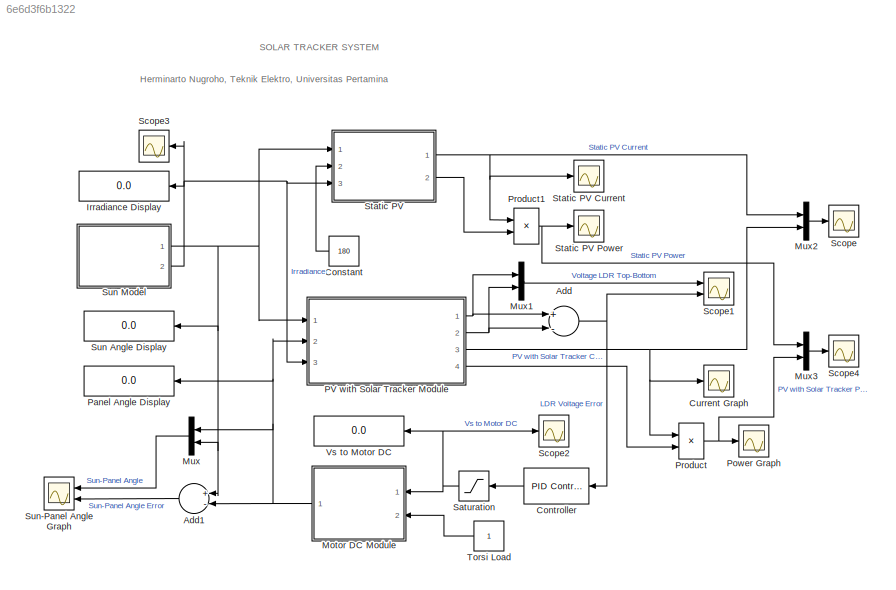
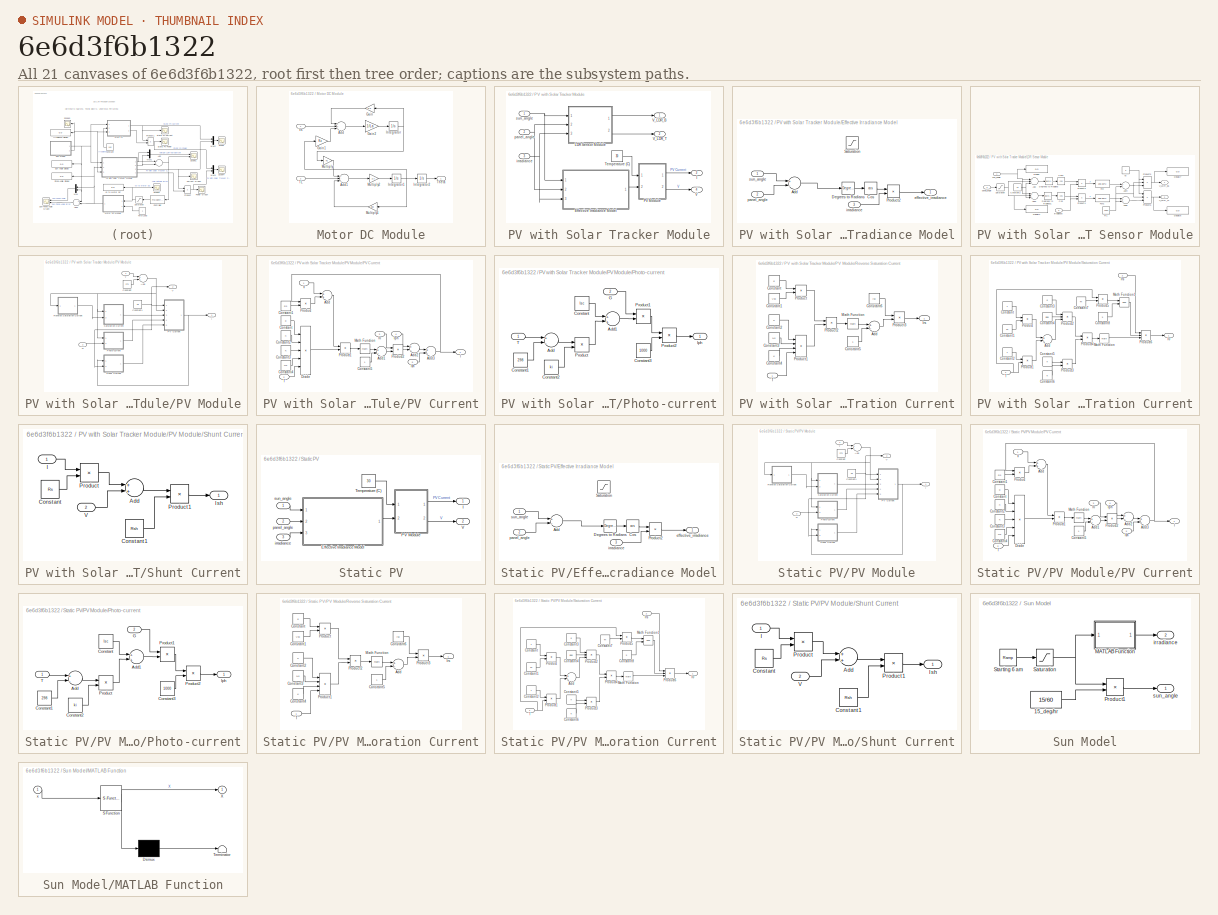
[diagram: thumbnail index - all 21 canvases of the model, root first then tree order]
MODEL slx_6e6d3f6b1322
KIND model
CONFIG AbsTol = auto
CONFIG EnableMultiTasking = off
CONFIG FixedStep = auto
CONFIG MaxStep = auto
CONFIG MinStep = auto
CONFIG RelTol = 1e-3
CONFIG SampleTimeConstraint = Unconstrained
CONFIG Solver = VariableStepAuto
CONFIG SolverName = VariableStepAuto
CONFIG StartTime = 0.0
CONFIG StopTime = 80
BLOCK [Sum] Add
  InputSameDT = off
  Inputs = +-
  OutDataTypeStr = Inherit: Inherit via internal rule
  Ports = [2, 1]
  SaturateOnIntegerOverflow = off
BLOCK [Sum] Add1
  InputSameDT = off
  Inputs = +-
  OutDataTypeStr = Inherit: Inherit via internal rule
  Ports = [2, 1]
  SaturateOnIntegerOverflow = off
BLOCK [Constant] Constant
  Value = 180
BLOCK [Reference] Controller  REF=simulink/Continuous/PID Controller
  Ports = [1, 1]
  SourceBlock = simulink/Continuous/PID Controller
  SourceProductBaseCode = SL
  SourceProductName = Simulink
  SourceType = PID 1dof
BLOCK [Scope] Current Graph
  Floating = off
  NumInputPorts = 1
  Ports = [1]
  ScopeSpecificationString = Simulink.scopes.TimeScopeBlockCfg('CurrentConfiguration', extmgr.ConfigurationSet(extmgr.Configuration('Core','General UI',true),extmgr.Configuration('Core','Source UI',true),extmgr.Configuration('Sources','WiredSimulink',true,'DataLoggingVariableName','ScopeData4'),extmgr.Configuration('Visuals','Time Domain',true,'SerializedDisplays',{struct('MinYLimReal','-1.68574','MaxYLimReal','7.54541','YLab...<+1421ch>
BLOCK [Display] Irradiance Display
  Decimation = 1
  Ports = [1]
BLOCK [SubSystem] Motor DC Module
  InitFcn = Ra=0.5,\nLa=1.5e-3,\nKc=0.05,\nJ=2.5e-4,\nBM=1e-4,
  Ports = [2, 1]
  RequestExecContextInheritance = off
BLOCK [Sum] Motor DC Module/Add
  InputSameDT = off
  Inputs = -+-
  OutDataTypeStr = Inherit: Inherit via internal rule
  Ports = [3, 1]
  SaturateOnIntegerOverflow = off
BLOCK [Sum] Motor DC Module/Add1
  InputSameDT = off
  Inputs = +--
  OutDataTypeStr = Inherit: Inherit via internal rule
  Ports = [3, 1]
  SaturateOnIntegerOverflow = off
BLOCK [Gain] Motor DC Module/Gain
  Gain = Ra
  OutDataTypeStr = Inherit: Inherit via internal rule
  ParamDataTypeStr = Inherit: Inherit via internal rule
  SaturateOnIntegerOverflow = off
BLOCK [Gain] Motor DC Module/Gain1
  Gain = Kc
  OutDataTypeStr = Inherit: Inherit via internal rule
  ParamDataTypeStr = Inherit: Inherit via internal rule
  SaturateOnIntegerOverflow = off
BLOCK [Gain] Motor DC Module/Gain2
  Gain = 1/La
  OutDataTypeStr = Inherit: Inherit via internal rule
  ParamDataTypeStr = Inherit: Inherit via internal rule
  SaturateOnIntegerOverflow = off
BLOCK [Integrator] Motor DC Module/Integrator
  Ports = [1, 1]
BLOCK [Integrator] Motor DC Module/Integrator1
  Ports = [1, 1]
BLOCK [Integrator] Motor DC Module/Integrator2
  Ports = [1, 1]
BLOCK [Gain] Motor DC Module/Multiply
  Gain = Kc
  OutDataTypeStr = Inherit: Inherit via internal rule
  ParamDataTypeStr = Inherit: Inherit via internal rule
  SaturateOnIntegerOverflow = off
BLOCK [Gain] Motor DC Module/Multiply1
  Gain = BM
  OutDataTypeStr = Inherit: Inherit via internal rule
  ParamDataTypeStr = Inherit: Inherit via internal rule
  SaturateOnIntegerOverflow = off
BLOCK [Gain] Motor DC Module/Multiply2
  Gain = 1/J
  OutDataTypeStr = Inherit: Inherit via internal rule
  ParamDataTypeStr = Inherit: Inherit via internal rule
  SaturateOnIntegerOverflow = off
BLOCK [Inport] Motor DC Module/TL
  IconDisplay = Port number
  Port = 2
BLOCK [Outport] Motor DC Module/Theta
  IconDisplay = Port number
BLOCK [Inport] Motor DC Module/Vs
  IconDisplay = Port number
BLOCK [Mux] Mux
  DisplayOption = bar
  Inputs = 2
  Ports = [2, 1]
BLOCK [Mux] Mux1
  DisplayOption = bar
  Inputs = 2
  Ports = [2, 1]
BLOCK [Mux] Mux2
  DisplayOption = bar
  Inputs = 2
  Ports = [2, 1]
BLOCK [Mux] Mux3
  DisplayOption = bar
  Inputs = 2
  Ports = [2, 1]
BLOCK [SubSystem] PV with Solar Tracker Module
  Ports = [3, 4]
  RequestExecContextInheritance = off
BLOCK [SubSystem] PV with Solar Tracker Module/Effective Irradiance Model
  Ports = [3, 1]
  RequestExecContextInheritance = off
BLOCK [Sum] PV with Solar Tracker Module/Effective Irradiance Model/Add
  InputSameDT = off
  Inputs = +-
  OutDataTypeStr = Inherit: Inherit via internal rule
  Ports = [2, 1]
  SaturateOnIntegerOverflow = off
BLOCK [Trigonometry] PV with Solar Tracker Module/Effective Irradiance Model/Cos
  Operator = cos
  Ports = [1, 1]
BLOCK [Reference] PV with Solar Tracker Module/Effective Irradiance Model/Degrees to Radians  REF=simulink_extras/Transformations/Degrees to
Radians
  Ports = [1, 1]
  SourceBlock = simulink_extras/Transformations/Degrees to\nRadians
  SourceProductBaseCode = SL
  SourceProductName = Simulink
  SourceType = DegreesToRadians
BLOCK [Product] PV with Solar Tracker Module/Effective Irradiance Model/Product2
  InputSameDT = off
  Inputs = **
  OutDataTypeStr = Inherit: Inherit via internal rule
  Ports = [2, 1]
  RndMeth = Floor
  SaturateOnIntegerOverflow = off
BLOCK [Saturate] PV with Solar Tracker Module/Effective Irradiance Model/Saturation
  InputPortMap = u0
  LowerLimit = -90
  Ports = [1, 1]
  UpperLimit = 90
BLOCK [Outport] PV with Solar Tracker Module/Effective Irradiance Model/effective_irradiance
  IconDisplay = Port number
BLOCK [Inport] PV with Solar Tracker Module/Effective Irradiance Model/irradiance
  IconDisplay = Port number
  Port = 3
BLOCK [Inport] PV with Solar Tracker Module/Effective Irradiance Model/panel_angle
  IconDisplay = Port number
  Port = 2
BLOCK [Inport] PV with Solar Tracker Module/Effective Irradiance Model/sun_angle
  IconDisplay = Port number
BLOCK [Outport] PV with Solar Tracker Module/I
  IconDisplay = Port number
  Port = 3
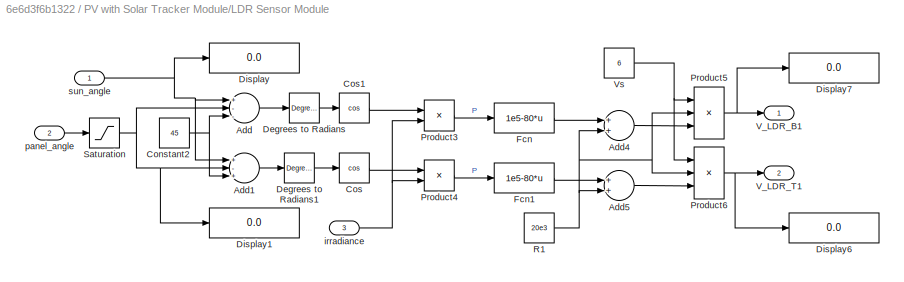
BLOCK [SubSystem] PV with Solar Tracker Module/LDR Sensor Module
  Ports = [3, 2]
  RequestExecContextInheritance = off
BLOCK [Sum] PV with Solar Tracker Module/LDR Sensor Module/Add
  InputSameDT = off
  Inputs = +--
  OutDataTypeStr = Inherit: Inherit via internal rule
  Ports = [3, 1]
  SaturateOnIntegerOverflow = off
BLOCK [Sum] PV with Solar Tracker Module/LDR Sensor Module/Add1
  InputSameDT = off
  Inputs = +-+
  OutDataTypeStr = Inherit: Inherit via internal rule
  Ports = [3, 1]
  SaturateOnIntegerOverflow = off
BLOCK [Sum] PV with Solar Tracker Module/LDR Sensor Module/Add4
  InputSameDT = off
  OutDataTypeStr = Inherit: Inherit via internal rule
  Ports = [2, 1]
  SaturateOnIntegerOverflow = off
BLOCK [Sum] PV with Solar Tracker Module/LDR Sensor Module/Add5
  InputSameDT = off
  OutDataTypeStr = Inherit: Inherit via internal rule
  Ports = [2, 1]
  SaturateOnIntegerOverflow = off
BLOCK [Constant] PV with Solar Tracker Module/LDR Sensor Module/Constant2
  Value = 45
BLOCK [Trigonometry] PV with Solar Tracker Module/LDR Sensor Module/Cos
  Operator = cos
  Ports = [1, 1]
BLOCK [Trigonometry] PV with Solar Tracker Module/LDR Sensor Module/Cos1
  Operator = cos
  Ports = [1, 1]
BLOCK [Reference] PV with Solar Tracker Module/LDR Sensor Module/Degrees to Radians  REF=simulink_extras/Transformations/Degrees to
Radians
  Ports = [1, 1]
  SourceBlock = simulink_extras/Transformations/Degrees to\nRadians
  SourceProductBaseCode = SL
  SourceProductName = Simulink
  SourceType = DegreesToRadians
BLOCK [Reference] PV with Solar Tracker Module/LDR Sensor Module/Degrees to Radians1  REF=simulink_extras/Transformations/Degrees to
Radians
  Ports = [1, 1]
  SourceBlock = simulink_extras/Transformations/Degrees to\nRadians
  SourceProductBaseCode = SL
  SourceProductName = Simulink
  SourceType = DegreesToRadians
BLOCK [Display] PV with Solar Tracker Module/LDR Sensor Module/Display
  Decimation = 1
  Ports = [1]
BLOCK [Display] PV with Solar Tracker Module/LDR Sensor Module/Display1
  Decimation = 1
  Ports = [1]
BLOCK [Display] PV with Solar Tracker Module/LDR Sensor Module/Display6
  Decimation = 1
  Ports = [1]
BLOCK [Display] PV with Solar Tracker Module/LDR Sensor Module/Display7
  Decimation = 1
  Ports = [1]
BLOCK [Fcn] PV with Solar Tracker Module/LDR Sensor Module/Fcn
  Expr = 1e5-80*u
BLOCK [Fcn] PV with Solar Tracker Module/LDR Sensor Module/Fcn1
  Expr = 1e5-80*u
BLOCK [Product] PV with Solar Tracker Module/LDR Sensor Module/Product3
  InputSameDT = off
  OutDataTypeStr = Inherit: Inherit via internal rule
  Ports = [2, 1]
  RndMeth = Floor
  SaturateOnIntegerOverflow = off
BLOCK [Product] PV with Solar Tracker Module/LDR Sensor Module/Product4
  InputSameDT = off
  OutDataTypeStr = Inherit: Inherit via internal rule
  Ports = [2, 1]
  RndMeth = Floor
  SaturateOnIntegerOverflow = off
BLOCK [Product] PV with Solar Tracker Module/LDR Sensor Module/Product5
  InputSameDT = off
  Inputs = **/
  OutDataTypeStr = Inherit: Inherit via internal rule
  Ports = [3, 1]
  RndMeth = Floor
  SaturateOnIntegerOverflow = off
BLOCK [Product] PV with Solar Tracker Module/LDR Sensor Module/Product6
  InputSameDT = off
  Inputs = **/
  OutDataTypeStr = Inherit: Inherit via internal rule
  Ports = [3, 1]
  RndMeth = Floor
  SaturateOnIntegerOverflow = off
BLOCK [Constant] PV with Solar Tracker Module/LDR Sensor Module/R1
  Value = 20e3
BLOCK [Saturate] PV with Solar Tracker Module/LDR Sensor Module/Saturation
  InputPortMap = u0
  LowerLimit = 0
  Ports = [1, 1]
  UpperLimit = 360
BLOCK [Outport] PV with Solar Tracker Module/LDR Sensor Module/V_LDR_B1
  IconDisplay = Port number
BLOCK [Outport] PV with Solar Tracker Module/LDR Sensor Module/V_LDR_T1
  IconDisplay = Port number
  Port = 2
BLOCK [Constant] PV with Solar Tracker Module/LDR Sensor Module/Vs
  Value = 6
BLOCK [Inport] PV with Solar Tracker Module/LDR Sensor Module/irradiance
  IconDisplay = Port number
  Port = 3
BLOCK [Inport] PV with Solar Tracker Module/LDR Sensor Module/panel_angle
  IconDisplay = Port number
  Port = 2
BLOCK [Inport] PV with Solar Tracker Module/LDR Sensor Module/sun_angle
  IconDisplay = Port number
BLOCK [SubSystem] PV with Solar Tracker Module/PV Module
  InitFcn = ki=0.0032,\nq=1.6e-19,\nK=1.38e-23,\nn=1.3,\nEg0=1.1,\nRs=0.221,\nRsh=414.405,\nTn=298,\nVoc=32.9,\nIsc=8.21,\nNs=54,
  Ports = [2, 2]
  RequestExecContextInheritance = off
BLOCK [Sum] PV with Solar Tracker Module/PV Module/Add
  InputSameDT = off
  OutDataTypeStr = Inherit: Inherit via internal rule
  Ports = [2, 1]
  SaturateOnIntegerOverflow = off
BLOCK [Constant] PV with Solar Tracker Module/PV Module/Constant
  Value = 273
BLOCK [Constant] PV with Solar Tracker Module/PV Module/Constant1
  Value = 26
BLOCK [Inport] PV with Solar Tracker Module/PV Module/G
  IconDisplay = Port number
  Port = 2
BLOCK [Outport] PV with Solar Tracker Module/PV Module/I
  IconDisplay = Port number
BLOCK [SubSystem] PV with Solar Tracker Module/PV Module/PV Current
  Ports = [5, 1]
  RequestExecContextInheritance = off
BLOCK [Sum] PV with Solar Tracker Module/PV Module/PV Current/Add
  InputSameDT = off
  OutDataTypeStr = Inherit: Inherit via internal rule
  Ports = [2, 1]
  SaturateOnIntegerOverflow = off
BLOCK [Sum] PV with Solar Tracker Module/PV Module/PV Current/Add1
  InputSameDT = off
  Inputs = +-
  OutDataTypeStr = Inherit: Inherit via internal rule
  Ports = [2, 1]
  SaturateOnIntegerOverflow = off
BLOCK [Sum] PV with Solar Tracker Module/PV Module/PV Current/Add2
  InputSameDT = off
  Inputs = +-
  OutDataTypeStr = Inherit: Inherit via internal rule
  Ports = [2, 1]
  SaturateOnIntegerOverflow = off
BLOCK [Sum] PV with Solar Tracker Module/PV Module/PV Current/Add3
  InputSameDT = off
  Inputs = +-
  OutDataTypeStr = Inherit: Inherit via internal rule
  Ports = [2, 1]
  SaturateOnIntegerOverflow = off
BLOCK [Constant] PV with Solar Tracker Module/PV Module/PV Current/Constant
  Value = q
BLOCK [Constant] PV with Solar Tracker Module/PV Module/PV Current/Constant1
  Value = Rs
BLOCK [Constant] PV with Solar Tracker Module/PV Module/PV Current/Constant2
  Value = n
BLOCK [Constant] PV with Solar Tracker Module/PV Module/PV Current/Constant3
  Value = K
BLOCK [Constant] PV with Solar Tracker Module/PV Module/PV Current/Constant4
  Value = Ns
BLOCK [Constant] PV with Solar Tracker Module/PV Module/PV Current/Constant5
BLOCK [Product] PV with Solar Tracker Module/PV Module/PV Current/Divide
  InputSameDT = off
  Inputs = *////
  OutDataTypeStr = Inherit: Inherit via internal rule
  Ports = [5, 1]
  RndMeth = Floor
  SaturateOnIntegerOverflow = off
BLOCK [Outport] PV with Solar Tracker Module/PV Module/PV Current/I
  IconDisplay = Port number
BLOCK [Inport] PV with Solar Tracker Module/PV Module/PV Current/I0
  IconDisplay = Port number
  Port = 3
BLOCK [Inport] PV with Solar Tracker Module/PV Module/PV Current/Iph
  IconDisplay = Port number
  Port = 4
BLOCK [Inport] PV with Solar Tracker Module/PV Module/PV Current/Ish
  IconDisplay = Port number
  Port = 5
BLOCK [Math] PV with Solar Tracker Module/PV Module/PV Current/Math Function
  Ports = [1, 1]
BLOCK [Product] PV with Solar Tracker Module/PV Module/PV Current/Product
  InputSameDT = off
  OutDataTypeStr = Inherit: Inherit via internal rule
  Ports = [2, 1]
  RndMeth = Floor
  SaturateOnIntegerOverflow = off
BLOCK [Product] PV with Solar Tracker Module/PV Module/PV Current/Product1
  InputSameDT = off
  OutDataTypeStr = Inherit: Inherit via internal rule
  Ports = [2, 1]
  RndMeth = Floor
  SaturateOnIntegerOverflow = off
BLOCK [Product] PV with Solar Tracker Module/PV Module/PV Current/Product2
  InputSameDT = off
  OutDataTypeStr = Inherit: Inherit via internal rule
  Ports = [2, 1]
  RndMeth = Floor
  SaturateOnIntegerOverflow = off
BLOCK [Inport] PV with Solar Tracker Module/PV Module/PV Current/T
  IconDisplay = Port number
  Port = 2
BLOCK [Inport] PV with Solar Tracker Module/PV Module/PV Current/V
  IconDisplay = Port number
BLOCK [SubSystem] PV with Solar Tracker Module/PV Module/Photo-current
  Ports = [2, 1]
  RequestExecContextInheritance = off
BLOCK [Sum] PV with Solar Tracker Module/PV Module/Photo-current/Add
  InputSameDT = off
  Inputs = +-
  OutDataTypeStr = Inherit: Inherit via internal rule
  Ports = [2, 1]
  SaturateOnIntegerOverflow = off
BLOCK [Sum] PV with Solar Tracker Module/PV Module/Photo-current/Add1
  InputSameDT = off
  OutDataTypeStr = Inherit: Inherit via internal rule
  Ports = [2, 1]
  SaturateOnIntegerOverflow = off
BLOCK [Constant] PV with Solar Tracker Module/PV Module/Photo-current/Constant
  Value = Isc
BLOCK [Constant] PV with Solar Tracker Module/PV Module/Photo-current/Constant1
  Value = 298
BLOCK [Constant] PV with Solar Tracker Module/PV Module/Photo-current/Constant2
  Value = ki
BLOCK [Constant] PV with Solar Tracker Module/PV Module/Photo-current/Constant3
  Value = 1000
BLOCK [Inport] PV with Solar Tracker Module/PV Module/Photo-current/G
  IconDisplay = Port number
  Port = 2
BLOCK [Outport] PV with Solar Tracker Module/PV Module/Photo-current/Iph
  IconDisplay = Port number
BLOCK [Product] PV with Solar Tracker Module/PV Module/Photo-current/Product
  InputSameDT = off
  OutDataTypeStr = Inherit: Inherit via internal rule
  Ports = [2, 1]
  RndMeth = Floor
  SaturateOnIntegerOverflow = off
BLOCK [Product] PV with Solar Tracker Module/PV Module/Photo-current/Product1
  InputSameDT = off
  OutDataTypeStr = Inherit: Inherit via internal rule
  Ports = [2, 1]
  RndMeth = Floor
  SaturateOnIntegerOverflow = off
BLOCK [Product] PV with Solar Tracker Module/PV Module/Photo-current/Product2
  InputSameDT = off
  Inputs = */
  OutDataTypeStr = Inherit: Inherit via internal rule
  Ports = [2, 1]
  RndMeth = Floor
  SaturateOnIntegerOverflow = off
BLOCK [Inport] PV with Solar Tracker Module/PV Module/Photo-current/T
  IconDisplay = Port number
BLOCK [SubSystem] PV with Solar Tracker Module/PV Module/Reverse Saturation Current
  Ports = [1, 1]
  RequestExecContextInheritance = off
BLOCK [Sum] PV with Solar Tracker Module/PV Module/Reverse Saturation Current/Add
  InputSameDT = off
  Inputs = +-
  OutDataTypeStr = Inherit: Inherit via internal rule
  Ports = [2, 1]
  SaturateOnIntegerOverflow = off
BLOCK [Constant] PV with Solar Tracker Module/PV Module/Reverse Saturation Current/Constant
  Value = q
BLOCK [Constant] PV with Solar Tracker Module/PV Module/Reverse Saturation Current/Constant1
  Value = Voc
BLOCK [Constant] PV with Solar Tracker Module/PV Module/Reverse Saturation Current/Constant2
  Value = n
BLOCK [Constant] PV with Solar Tracker Module/PV Module/Reverse Saturation Current/Constant3
  Value = Ns
BLOCK [Constant] PV with Solar Tracker Module/PV Module/Reverse Saturation Current/Constant4
  Value = K
BLOCK [Constant] PV with Solar Tracker Module/PV Module/Reverse Saturation Current/Constant5
BLOCK [Constant] PV with Solar Tracker Module/PV Module/Reverse Saturation Current/Constant6
  Value = Isc
BLOCK [Outport] PV with Solar Tracker Module/PV Module/Reverse Saturation Current/Irs
  IconDisplay = Port number
BLOCK [Math] PV with Solar Tracker Module/PV Module/Reverse Saturation Current/Math Function
  Ports = [1, 1]
BLOCK [Product] PV with Solar Tracker Module/PV Module/Reverse Saturation Current/Product
  InputSameDT = off
  OutDataTypeStr = Inherit: Inherit via internal rule
  Ports = [2, 1]
  RndMeth = Floor
  SaturateOnIntegerOverflow = off
BLOCK [Product] PV with Solar Tracker Module/PV Module/Reverse Saturation Current/Product1
  InputSameDT = off
  Inputs = ****
  OutDataTypeStr = Inherit: Inherit via internal rule
  Ports = [4, 1]
  RndMeth = Floor
  SaturateOnIntegerOverflow = off
BLOCK [Product] PV with Solar Tracker Module/PV Module/Reverse Saturation Current/Product2
  InputSameDT = off
  Inputs = */
  OutDataTypeStr = Inherit: Inherit via internal rule
  Ports = [2, 1]
  RndMeth = Floor
  SaturateOnIntegerOverflow = off
BLOCK [Product] PV with Solar Tracker Module/PV Module/Reverse Saturation Current/Product3
  InputSameDT = off
  Inputs = */
  OutDataTypeStr = Inherit: Inherit via internal rule
  Ports = [2, 1]
  RndMeth = Floor
  SaturateOnIntegerOverflow = off
BLOCK [Inport] PV with Solar Tracker Module/PV Module/Reverse Saturation Current/T
  IconDisplay = Port number
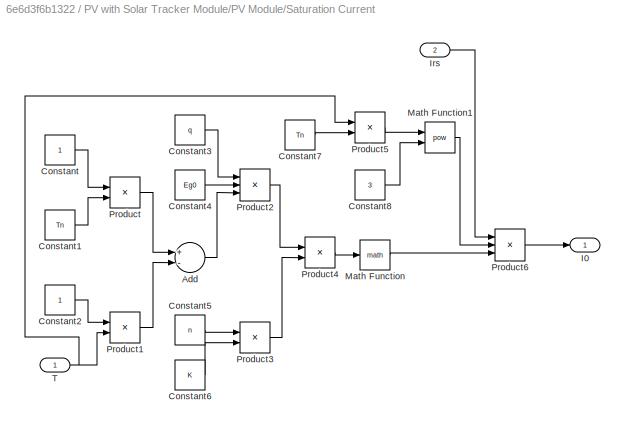
BLOCK [SubSystem] PV with Solar Tracker Module/PV Module/Saturation Current
  Ports = [2, 1]
  RequestExecContextInheritance = off
BLOCK [Sum] PV with Solar Tracker Module/PV Module/Saturation Current/Add
  InputSameDT = off
  Inputs = +-
  OutDataTypeStr = Inherit: Inherit via internal rule
  Ports = [2, 1]
  SaturateOnIntegerOverflow = off
BLOCK [Constant] PV with Solar Tracker Module/PV Module/Saturation Current/Constant
BLOCK [Constant] PV with Solar Tracker Module/PV Module/Saturation Current/Constant1
  Value = Tn
BLOCK [Constant] PV with Solar Tracker Module/PV Module/Saturation Current/Constant2
BLOCK [Constant] PV with Solar Tracker Module/PV Module/Saturation Current/Constant3
  Value = q
BLOCK [Constant] PV with Solar Tracker Module/PV Module/Saturation Current/Constant4
  Value = Eg0
BLOCK [Constant] PV with Solar Tracker Module/PV Module/Saturation Current/Constant5
  Value = n
BLOCK [Constant] PV with Solar Tracker Module/PV Module/Saturation Current/Constant6
  Value = K
BLOCK [Constant] PV with Solar Tracker Module/PV Module/Saturation Current/Constant7
  Value = Tn
BLOCK [Constant] PV with Solar Tracker Module/PV Module/Saturation Current/Constant8
  Value = 3
BLOCK [Outport] PV with Solar Tracker Module/PV Module/Saturation Current/I0
  IconDisplay = Port number
BLOCK [Inport] PV with Solar Tracker Module/PV Module/Saturation Current/Irs
  IconDisplay = Port number
  Port = 2
BLOCK [Math] PV with Solar Tracker Module/PV Module/Saturation Current/Math Function
  Ports = [1, 1]
BLOCK [Math] PV with Solar Tracker Module/PV Module/Saturation Current/Math Function1
  Operator = pow
  Ports = [2, 1]
BLOCK [Product] PV with Solar Tracker Module/PV Module/Saturation Current/Product
  InputSameDT = off
  Inputs = */
  OutDataTypeStr = Inherit: Inherit via internal rule
  Ports = [2, 1]
  RndMeth = Floor
  SaturateOnIntegerOverflow = off
BLOCK [Product] PV with Solar Tracker Module/PV Module/Saturation Current/Product1
  InputSameDT = off
  Inputs = */
  OutDataTypeStr = Inherit: Inherit via internal rule
  Ports = [2, 1]
  RndMeth = Floor
  SaturateOnIntegerOverflow = off
BLOCK [Product] PV with Solar Tracker Module/PV Module/Saturation Current/Product2
  InputSameDT = off
  Inputs = ***
  OutDataTypeStr = Inherit: Inherit via internal rule
  Ports = [3, 1]
  RndMeth = Floor
  SaturateOnIntegerOverflow = off
BLOCK [Product] PV with Solar Tracker Module/PV Module/Saturation Current/Product3
  InputSameDT = off
  Inputs = **
  OutDataTypeStr = Inherit: Inherit via internal rule
  Ports = [2, 1]
  RndMeth = Floor
  SaturateOnIntegerOverflow = off
BLOCK [Product] PV with Solar Tracker Module/PV Module/Saturation Current/Product4
  InputSameDT = off
  Inputs = */
  OutDataTypeStr = Inherit: Inherit via internal rule
  Ports = [2, 1]
  RndMeth = Floor
  SaturateOnIntegerOverflow = off
BLOCK [Product] PV with Solar Tracker Module/PV Module/Saturation Current/Product5
  InputSameDT = off
  Inputs = */
  OutDataTypeStr = Inherit: Inherit via internal rule
  Ports = [2, 1]
  RndMeth = Floor
  SaturateOnIntegerOverflow = off
BLOCK [Product] PV with Solar Tracker Module/PV Module/Saturation Current/Product6
  InputSameDT = off
  Inputs = ***
  OutDataTypeStr = Inherit: Inherit via internal rule
  Ports = [3, 1]
  RndMeth = Floor
  SaturateOnIntegerOverflow = off
BLOCK [Inport] PV with Solar Tracker Module/PV Module/Saturation Current/T
  IconDisplay = Port number
BLOCK [SubSystem] PV with Solar Tracker Module/PV Module/Shunt Current
  Ports = [2, 1]
  RequestExecContextInheritance = off
BLOCK [Sum] PV with Solar Tracker Module/PV Module/Shunt Current/Add
  InputSameDT = off
  OutDataTypeStr = Inherit: Inherit via internal rule
  Ports = [2, 1]
  SaturateOnIntegerOverflow = off
BLOCK [Constant] PV with Solar Tracker Module/PV Module/Shunt Current/Constant
  Value = Rs
BLOCK [Constant] PV with Solar Tracker Module/PV Module/Shunt Current/Constant1
  Value = Rsh
BLOCK [Inport] PV with Solar Tracker Module/PV Module/Shunt Current/I
  IconDisplay = Port number
BLOCK [Outport] PV with Solar Tracker Module/PV Module/Shunt Current/Ish
  IconDisplay = Port number
BLOCK [Product] PV with Solar Tracker Module/PV Module/Shunt Current/Product
  InputSameDT = off
  OutDataTypeStr = Inherit: Inherit via internal rule
  Ports = [2, 1]
  RndMeth = Floor
  SaturateOnIntegerOverflow = off
BLOCK [Product] PV with Solar Tracker Module/PV Module/Shunt Current/Product1
  InputSameDT = off
  Inputs = */
  OutDataTypeStr = Inherit: Inherit via internal rule
  Ports = [2, 1]
  RndMeth = Floor
  SaturateOnIntegerOverflow = off
BLOCK [Inport] PV with Solar Tracker Module/PV Module/Shunt Current/V
  IconDisplay = Port number
  Port = 2
BLOCK [Inport] PV with Solar Tracker Module/PV Module/T
  IconDisplay = Port number
BLOCK [Outport] PV with Solar Tracker Module/PV Module/V
  IconDisplay = Port number
  Port = 2
BLOCK [Constant] PV with Solar Tracker Module/Temperature (C)
  Value = 30
BLOCK [Outport] PV with Solar Tracker Module/V
  IconDisplay = Port number
  Port = 4
BLOCK [Outport] PV with Solar Tracker Module/V_LDR_B
  IconDisplay = Port number
BLOCK [Outport] PV with Solar Tracker Module/V_LDR_T
  IconDisplay = Port number
  Port = 2
BLOCK [Inport] PV with Solar Tracker Module/irradiance
  IconDisplay = Port number
  Port = 3
BLOCK [Inport] PV with Solar Tracker Module/panel_angle
  IconDisplay = Port number
  Port = 2
BLOCK [Inport] PV with Solar Tracker Module/sun_angle
  IconDisplay = Port number
BLOCK [Display] Panel Angle Display
  Decimation = 1
  Ports = [1]
BLOCK [Scope] Power Graph
  Floating = off
  NumInputPorts = 1
  Ports = [1]
  ScopeSpecificationString = Simulink.scopes.TimeScopeBlockCfg('CurrentConfiguration', extmgr.ConfigurationSet(extmgr.Configuration('Core','General UI',true),extmgr.Configuration('Core','Source UI',true),extmgr.Configuration('Sources','WiredSimulink',true,'DataLoggingVariableName','ScopeData2'),extmgr.Configuration('Visuals','Time Domain',true,'SerializedDisplays',{struct('MinYLimReal','-43.82917','MaxYLimReal','196.18069','Y...<+1429ch>
BLOCK [Product] Product
  InputSameDT = off
  OutDataTypeStr = Inherit: Inherit via internal rule
  Ports = [2, 1]
  RndMeth = Floor
  SaturateOnIntegerOverflow = off
BLOCK [Product] Product1
  InputSameDT = off
  OutDataTypeStr = Inherit: Inherit via internal rule
  Ports = [2, 1]
  RndMeth = Floor
  SaturateOnIntegerOverflow = off
BLOCK [Saturate] Saturation
  InputPortMap = u0
  LowerLimit = -12
  Ports = [1, 1]
  UpperLimit = 12
BLOCK [Scope] Scope
  Floating = off
  NumInputPorts = 1
  Ports = [1]
  ScopeSpecificationString = Simulink.scopes.TimeScopeBlockCfg('CurrentConfiguration', extmgr.ConfigurationSet(extmgr.Configuration('Core','General UI',true),extmgr.Configuration('Core','Source UI',true),extmgr.Configuration('Sources','WiredSimulink',true,'DataLoggingVariableName','ScopeData6'),extmgr.Configuration('Visuals','Time Domain',true,'SerializedDisplays',{struct('MinYLimReal','-1.68574','MaxYLimReal','7.54541','YLab...<+1439ch>
BLOCK [Scope] Scope1
  Floating = off
  NumInputPorts = 2
  Ports = [2]
  ScopeSpecificationString = Simulink.scopes.TimeScopeBlockCfg('CurrentConfiguration', extmgr.ConfigurationSet(extmgr.Configuration('Core','General UI',true),extmgr.Configuration('Core','Source UI',true),extmgr.Configuration('Sources','WiredSimulink',true,'DataLoggingVariableName','ScopeData3'),extmgr.Configuration('Visuals','Time Domain',true,'SerializedDisplays',{struct('MinYLimReal','0.86155','MaxYLimReal','1.84431','YLabe...<+2074ch>
BLOCK [Scope] Scope2
  Floating = off
  NumInputPorts = 1
  Ports = [1]
  ScopeSpecificationString = Simulink.scopes.TimeScopeBlockCfg('CurrentConfiguration', extmgr.ConfigurationSet(extmgr.Configuration('Core','General UI',true),extmgr.Configuration('Core','Source UI',true),extmgr.Configuration('Sources','WiredSimulink',true,'DataLoggingVariableName','ScopeData3'),extmgr.Configuration('Visuals','Time Domain',true,'SerializedDisplays',{struct('MinYLimReal','3.66362','MaxYLimReal','12.92626','YLab...<+1375ch>
BLOCK [Scope] Scope3
  Floating = off
  NumInputPorts = 1
  Ports = [1]
  ScopeSpecificationString = Simulink.scopes.TimeScopeBlockCfg('CurrentConfiguration', extmgr.ConfigurationSet(extmgr.Configuration('Core','General UI',true),extmgr.Configuration('Core','Source UI',true),extmgr.Configuration('Sources','WiredSimulink',true,'DataLoggingVariableName','ScopeData1'),extmgr.Configuration('Visuals','Time Domain',true,'SerializedDisplays',{struct('MinYLimReal','-73.24113','MaxYLimReal','1015.23343','...<+1416ch>
BLOCK [Scope] Scope4
  Floating = off
  NumInputPorts = 1
  Ports = [1]
  ScopeSpecificationString = Simulink.scopes.TimeScopeBlockCfg('CurrentConfiguration', extmgr.ConfigurationSet(extmgr.Configuration('Core','General UI',true),extmgr.Configuration('Core','Source UI',true),extmgr.Configuration('Sources','WiredSimulink',true,'DataLoggingVariableName','ScopeData7'),extmgr.Configuration('Visuals','Time Domain',true,'SerializedDisplays',{struct('MinYLimReal','-43.82917','MaxYLimReal','196.18069','Y...<+1471ch>
BLOCK [SubSystem] Static PV
  Ports = [3, 2]
  RequestExecContextInheritance = off
BLOCK [Scope] Static PV Current
  Floating = off
  NumInputPorts = 1
  Ports = [1]
  ScopeSpecificationString = Simulink.scopes.TimeScopeBlockCfg('CurrentConfiguration', extmgr.ConfigurationSet(extmgr.Configuration('Core','General UI',true),extmgr.Configuration('Core','Source UI',true),extmgr.Configuration('Sources','WiredSimulink',true,'DataLoggingVariableName','ScopeData4'),extmgr.Configuration('Visuals','Time Domain',true,'SerializedDisplays',{struct('MinYLimReal','-1.26893','MaxYLimReal','7.49877','YLab...<+1409ch>
BLOCK [Scope] Static PV Power
  Floating = off
  NumInputPorts = 1
  Ports = [1]
  ScopeSpecificationString = Simulink.scopes.TimeScopeBlockCfg('CurrentConfiguration', extmgr.ConfigurationSet(extmgr.Configuration('Core','General UI',true),extmgr.Configuration('Core','Source UI',true),extmgr.Configuration('Sources','WiredSimulink',true,'DataLoggingVariableName','ScopeData5'),extmgr.Configuration('Visuals','Time Domain',true,'SerializedDisplays',{struct('MinYLimReal','-32.99227','MaxYLimReal','194.96802','Y...<+1417ch>
BLOCK [SubSystem] Static PV/Effective Irradiance Model
  Ports = [3, 1]
  RequestExecContextInheritance = off
BLOCK [Sum] Static PV/Effective Irradiance Model/Add
  InputSameDT = off
  Inputs = +-
  OutDataTypeStr = Inherit: Inherit via internal rule
  Ports = [2, 1]
  SaturateOnIntegerOverflow = off
BLOCK [Trigonometry] Static PV/Effective Irradiance Model/Cos
  Operator = cos
  Ports = [1, 1]
BLOCK [Reference] Static PV/Effective Irradiance Model/Degrees to Radians  REF=simulink_extras/Transformations/Degrees to
Radians
  Ports = [1, 1]
  SourceBlock = simulink_extras/Transformations/Degrees to\nRadians
  SourceProductBaseCode = SL
  SourceProductName = Simulink
  SourceType = DegreesToRadians
BLOCK [Product] Static PV/Effective Irradiance Model/Product2
  InputSameDT = off
  Inputs = **
  OutDataTypeStr = Inherit: Inherit via internal rule
  Ports = [2, 1]
  RndMeth = Floor
  SaturateOnIntegerOverflow = off
BLOCK [Saturate] Static PV/Effective Irradiance Model/Saturation
  InputPortMap = u0
  LowerLimit = -90
  Ports = [1, 1]
  UpperLimit = 90
BLOCK [Outport] Static PV/Effective Irradiance Model/effective_irradiance
  IconDisplay = Port number
BLOCK [Inport] Static PV/Effective Irradiance Model/irradiance
  IconDisplay = Port number
  Port = 3
BLOCK [Inport] Static PV/Effective Irradiance Model/panel_angle
  IconDisplay = Port number
  Port = 2
BLOCK [Inport] Static PV/Effective Irradiance Model/sun_angle
  IconDisplay = Port number
BLOCK [Outport] Static PV/I
  IconDisplay = Port number
BLOCK [SubSystem] Static PV/PV Module
  InitFcn = ki=0.0032,\nq=1.6e-19,\nK=1.38e-23,\nn=1.3,\nEg0=1.1,\nRs=0.221,\nRsh=414.405,\nTn=298,\nVoc=32.9,\nIsc=8.21,\nNs=54,
  Ports = [2, 2]
  RequestExecContextInheritance = off
BLOCK [Sum] Static PV/PV Module/Add
  InputSameDT = off
  OutDataTypeStr = Inherit: Inherit via internal rule
  Ports = [2, 1]
  SaturateOnIntegerOverflow = off
BLOCK [Constant] Static PV/PV Module/Constant
  Value = 273
BLOCK [Constant] Static PV/PV Module/Constant1
  Value = 26
BLOCK [Inport] Static PV/PV Module/G
  IconDisplay = Port number
  Port = 2
BLOCK [Outport] Static PV/PV Module/I
  IconDisplay = Port number
BLOCK [SubSystem] Static PV/PV Module/PV Current
  Ports = [5, 1]
  RequestExecContextInheritance = off
BLOCK [Sum] Static PV/PV Module/PV Current/Add
  InputSameDT = off
  OutDataTypeStr = Inherit: Inherit via internal rule
  Ports = [2, 1]
  SaturateOnIntegerOverflow = off
BLOCK [Sum] Static PV/PV Module/PV Current/Add1
  InputSameDT = off
  Inputs = +-
  OutDataTypeStr = Inherit: Inherit via internal rule
  Ports = [2, 1]
  SaturateOnIntegerOverflow = off
BLOCK [Sum] Static PV/PV Module/PV Current/Add2
  InputSameDT = off
  Inputs = +-
  OutDataTypeStr = Inherit: Inherit via internal rule
  Ports = [2, 1]
  SaturateOnIntegerOverflow = off
BLOCK [Sum] Static PV/PV Module/PV Current/Add3
  InputSameDT = off
  Inputs = +-
  OutDataTypeStr = Inherit: Inherit via internal rule
  Ports = [2, 1]
  SaturateOnIntegerOverflow = off
BLOCK [Constant] Static PV/PV Module/PV Current/Constant
  Value = q
BLOCK [Constant] Static PV/PV Module/PV Current/Constant1
  Value = Rs
BLOCK [Constant] Static PV/PV Module/PV Current/Constant2
  Value = n
BLOCK [Constant] Static PV/PV Module/PV Current/Constant3
  Value = K
BLOCK [Constant] Static PV/PV Module/PV Current/Constant4
  Value = Ns
BLOCK [Constant] Static PV/PV Module/PV Current/Constant5
BLOCK [Product] Static PV/PV Module/PV Current/Divide
  InputSameDT = off
  Inputs = *////
  OutDataTypeStr = Inherit: Inherit via internal rule
  Ports = [5, 1]
  RndMeth = Floor
  SaturateOnIntegerOverflow = off
BLOCK [Outport] Static PV/PV Module/PV Current/I
  IconDisplay = Port number
BLOCK [Inport] Static PV/PV Module/PV Current/I0
  IconDisplay = Port number
  Port = 3
BLOCK [Inport] Static PV/PV Module/PV Current/Iph
  IconDisplay = Port number
  Port = 4
BLOCK [Inport] Static PV/PV Module/PV Current/Ish
  IconDisplay = Port number
  Port = 5
BLOCK [Math] Static PV/PV Module/PV Current/Math Function
  Ports = [1, 1]
BLOCK [Product] Static PV/PV Module/PV Current/Product
  InputSameDT = off
  OutDataTypeStr = Inherit: Inherit via internal rule
  Ports = [2, 1]
  RndMeth = Floor
  SaturateOnIntegerOverflow = off
BLOCK [Product] Static PV/PV Module/PV Current/Product1
  InputSameDT = off
  OutDataTypeStr = Inherit: Inherit via internal rule
  Ports = [2, 1]
  RndMeth = Floor
  SaturateOnIntegerOverflow = off
BLOCK [Product] Static PV/PV Module/PV Current/Product2
  InputSameDT = off
  OutDataTypeStr = Inherit: Inherit via internal rule
  Ports = [2, 1]
  RndMeth = Floor
  SaturateOnIntegerOverflow = off
BLOCK [Inport] Static PV/PV Module/PV Current/T
  IconDisplay = Port number
  Port = 2
BLOCK [Inport] Static PV/PV Module/PV Current/V
  IconDisplay = Port number
BLOCK [SubSystem] Static PV/PV Module/Photo-current
  Ports = [2, 1]
  RequestExecContextInheritance = off
BLOCK [Sum] Static PV/PV Module/Photo-current/Add
  InputSameDT = off
  Inputs = +-
  OutDataTypeStr = Inherit: Inherit via internal rule
  Ports = [2, 1]
  SaturateOnIntegerOverflow = off
BLOCK [Sum] Static PV/PV Module/Photo-current/Add1
  InputSameDT = off
  OutDataTypeStr = Inherit: Inherit via internal rule
  Ports = [2, 1]
  SaturateOnIntegerOverflow = off
BLOCK [Constant] Static PV/PV Module/Photo-current/Constant
  Value = Isc
BLOCK [Constant] Static PV/PV Module/Photo-current/Constant1
  Value = 298
BLOCK [Constant] Static PV/PV Module/Photo-current/Constant2
  Value = ki
BLOCK [Constant] Static PV/PV Module/Photo-current/Constant3
  Value = 1000
BLOCK [Inport] Static PV/PV Module/Photo-current/G
  IconDisplay = Port number
  Port = 2
BLOCK [Outport] Static PV/PV Module/Photo-current/Iph
  IconDisplay = Port number
BLOCK [Product] Static PV/PV Module/Photo-current/Product
  InputSameDT = off
  OutDataTypeStr = Inherit: Inherit via internal rule
  Ports = [2, 1]
  RndMeth = Floor
  SaturateOnIntegerOverflow = off
BLOCK [Product] Static PV/PV Module/Photo-current/Product1
  InputSameDT = off
  OutDataTypeStr = Inherit: Inherit via internal rule
  Ports = [2, 1]
  RndMeth = Floor
  SaturateOnIntegerOverflow = off
BLOCK [Product] Static PV/PV Module/Photo-current/Product2
  InputSameDT = off
  Inputs = */
  OutDataTypeStr = Inherit: Inherit via internal rule
  Ports = [2, 1]
  RndMeth = Floor
  SaturateOnIntegerOverflow = off
BLOCK [Inport] Static PV/PV Module/Photo-current/T
  IconDisplay = Port number
BLOCK [SubSystem] Static PV/PV Module/Reverse Saturation Current
  Ports = [1, 1]
  RequestExecContextInheritance = off
BLOCK [Sum] Static PV/PV Module/Reverse Saturation Current/Add
  InputSameDT = off
  Inputs = +-
  OutDataTypeStr = Inherit: Inherit via internal rule
  Ports = [2, 1]
  SaturateOnIntegerOverflow = off
BLOCK [Constant] Static PV/PV Module/Reverse Saturation Current/Constant
  Value = q
BLOCK [Constant] Static PV/PV Module/Reverse Saturation Current/Constant1
  Value = Voc
BLOCK [Constant] Static PV/PV Module/Reverse Saturation Current/Constant2
  Value = n
BLOCK [Constant] Static PV/PV Module/Reverse Saturation Current/Constant3
  Value = Ns
BLOCK [Constant] Static PV/PV Module/Reverse Saturation Current/Constant4
  Value = K
BLOCK [Constant] Static PV/PV Module/Reverse Saturation Current/Constant5
BLOCK [Constant] Static PV/PV Module/Reverse Saturation Current/Constant6
  Value = Isc
BLOCK [Outport] Static PV/PV Module/Reverse Saturation Current/Irs
  IconDisplay = Port number
BLOCK [Math] Static PV/PV Module/Reverse Saturation Current/Math Function
  Ports = [1, 1]
BLOCK [Product] Static PV/PV Module/Reverse Saturation Current/Product
  InputSameDT = off
  OutDataTypeStr = Inherit: Inherit via internal rule
  Ports = [2, 1]
  RndMeth = Floor
  SaturateOnIntegerOverflow = off
BLOCK [Product] Static PV/PV Module/Reverse Saturation Current/Product1
  InputSameDT = off
  Inputs = ****
  OutDataTypeStr = Inherit: Inherit via internal rule
  Ports = [4, 1]
  RndMeth = Floor
  SaturateOnIntegerOverflow = off
BLOCK [Product] Static PV/PV Module/Reverse Saturation Current/Product2
  InputSameDT = off
  Inputs = */
  OutDataTypeStr = Inherit: Inherit via internal rule
  Ports = [2, 1]
  RndMeth = Floor
  SaturateOnIntegerOverflow = off
BLOCK [Product] Static PV/PV Module/Reverse Saturation Current/Product3
  InputSameDT = off
  Inputs = */
  OutDataTypeStr = Inherit: Inherit via internal rule
  Ports = [2, 1]
  RndMeth = Floor
  SaturateOnIntegerOverflow = off
BLOCK [Inport] Static PV/PV Module/Reverse Saturation Current/T
  IconDisplay = Port number
BLOCK [SubSystem] Static PV/PV Module/Saturation Current
  Ports = [2, 1]
  RequestExecContextInheritance = off
BLOCK [Sum] Static PV/PV Module/Saturation Current/Add
  InputSameDT = off
  Inputs = +-
  OutDataTypeStr = Inherit: Inherit via internal rule
  Ports = [2, 1]
  SaturateOnIntegerOverflow = off
BLOCK [Constant] Static PV/PV Module/Saturation Current/Constant
BLOCK [Constant] Static PV/PV Module/Saturation Current/Constant1
  Value = Tn
BLOCK [Constant] Static PV/PV Module/Saturation Current/Constant2
BLOCK [Constant] Static PV/PV Module/Saturation Current/Constant3
  Value = q
BLOCK [Constant] Static PV/PV Module/Saturation Current/Constant4
  Value = Eg0
BLOCK [Constant] Static PV/PV Module/Saturation Current/Constant5
  Value = n
BLOCK [Constant] Static PV/PV Module/Saturation Current/Constant6
  Value = K
BLOCK [Constant] Static PV/PV Module/Saturation Current/Constant7
  Value = Tn
BLOCK [Constant] Static PV/PV Module/Saturation Current/Constant8
  Value = 3
BLOCK [Outport] Static PV/PV Module/Saturation Current/I0
  IconDisplay = Port number
BLOCK [Inport] Static PV/PV Module/Saturation Current/Irs
  IconDisplay = Port number
  Port = 2
BLOCK [Math] Static PV/PV Module/Saturation Current/Math Function
  Ports = [1, 1]
BLOCK [Math] Static PV/PV Module/Saturation Current/Math Function1
  Operator = pow
  Ports = [2, 1]
BLOCK [Product] Static PV/PV Module/Saturation Current/Product
  InputSameDT = off
  Inputs = */
  OutDataTypeStr = Inherit: Inherit via internal rule
  Ports = [2, 1]
  RndMeth = Floor
  SaturateOnIntegerOverflow = off
BLOCK [Product] Static PV/PV Module/Saturation Current/Product1
  InputSameDT = off
  Inputs = */
  OutDataTypeStr = Inherit: Inherit via internal rule
  Ports = [2, 1]
  RndMeth = Floor
  SaturateOnIntegerOverflow = off
BLOCK [Product] Static PV/PV Module/Saturation Current/Product2
  InputSameDT = off
  Inputs = ***
  OutDataTypeStr = Inherit: Inherit via internal rule
  Ports = [3, 1]
  RndMeth = Floor
  SaturateOnIntegerOverflow = off
BLOCK [Product] Static PV/PV Module/Saturation Current/Product3
  InputSameDT = off
  Inputs = **
  OutDataTypeStr = Inherit: Inherit via internal rule
  Ports = [2, 1]
  RndMeth = Floor
  SaturateOnIntegerOverflow = off
BLOCK [Product] Static PV/PV Module/Saturation Current/Product4
  InputSameDT = off
  Inputs = */
  OutDataTypeStr = Inherit: Inherit via internal rule
  Ports = [2, 1]
  RndMeth = Floor
  SaturateOnIntegerOverflow = off
BLOCK [Product] Static PV/PV Module/Saturation Current/Product5
  InputSameDT = off
  Inputs = */
  OutDataTypeStr = Inherit: Inherit via internal rule
  Ports = [2, 1]
  RndMeth = Floor
  SaturateOnIntegerOverflow = off
BLOCK [Product] Static PV/PV Module/Saturation Current/Product6
  InputSameDT = off
  Inputs = ***
  OutDataTypeStr = Inherit: Inherit via internal rule
  Ports = [3, 1]
  RndMeth = Floor
  SaturateOnIntegerOverflow = off
BLOCK [Inport] Static PV/PV Module/Saturation Current/T
  IconDisplay = Port number
BLOCK [SubSystem] Static PV/PV Module/Shunt Current
  Ports = [2, 1]
  RequestExecContextInheritance = off
BLOCK [Sum] Static PV/PV Module/Shunt Current/Add
  InputSameDT = off
  OutDataTypeStr = Inherit: Inherit via internal rule
  Ports = [2, 1]
  SaturateOnIntegerOverflow = off
BLOCK [Constant] Static PV/PV Module/Shunt Current/Constant
  Value = Rs
BLOCK [Constant] Static PV/PV Module/Shunt Current/Constant1
  Value = Rsh
BLOCK [Inport] Static PV/PV Module/Shunt Current/I
  IconDisplay = Port number
BLOCK [Outport] Static PV/PV Module/Shunt Current/Ish
  IconDisplay = Port number
BLOCK [Product] Static PV/PV Module/Shunt Current/Product
  InputSameDT = off
  OutDataTypeStr = Inherit: Inherit via internal rule
  Ports = [2, 1]
  RndMeth = Floor
  SaturateOnIntegerOverflow = off
BLOCK [Product] Static PV/PV Module/Shunt Current/Product1
  InputSameDT = off
  Inputs = */
  OutDataTypeStr = Inherit: Inherit via internal rule
  Ports = [2, 1]
  RndMeth = Floor
  SaturateOnIntegerOverflow = off
BLOCK [Inport] Static PV/PV Module/Shunt Current/V
  IconDisplay = Port number
  Port = 2
BLOCK [Inport] Static PV/PV Module/T
  IconDisplay = Port number
BLOCK [Outport] Static PV/PV Module/V
  IconDisplay = Port number
  Port = 2
BLOCK [Constant] Static PV/Temperature (C)
  Value = 30
BLOCK [Outport] Static PV/V
  IconDisplay = Port number
  Port = 2
BLOCK [Inport] Static PV/irradiance
  IconDisplay = Port number
  Port = 3
BLOCK [Inport] Static PV/panel_angle
  IconDisplay = Port number
  Port = 2
BLOCK [Inport] Static PV/sun_angle
  IconDisplay = Port number
BLOCK [Display] Sun Angle Display
  Decimation = 1
  Ports = [1]
BLOCK [SubSystem] Sun Model
  Ports = [0, 2]
  RequestExecContextInheritance = off
BLOCK [Constant] Sun Model/15_deg//hr
  Value = 15/60
BLOCK [SubSystem] Sun Model/MATLAB Function
  ErrorFcn = Stateflow.Translate.translate
  PermitHierarchicalResolution = ExplicitOnly
  Ports = [1, 1]
  RequestExecContextInheritance = off
  SFBlockType = MATLAB Function
  TreatAsAtomicUnit = on
BLOCK [Demux] Sun Model/MATLAB Function/ Demux 
  Outputs = 1
  Ports = [1, 1]
BLOCK [S-Function] Sun Model/MATLAB Function/ SFunction 
  EnableBusSupport = on
  FunctionName = sf_sfun
  PortCounts = [1 2]
  Ports = [1, 2]
  SFcnIsStateOwnerBlock = off
  SFunctionDeploymentMode = off
  Tag = Stateflow S-Function solar_PV_model 2
BLOCK [Terminator] Sun Model/MATLAB Function/ Terminator 
BLOCK [Outport] Sun Model/MATLAB Function/X
  IconDisplay = Port number
BLOCK [Inport] Sun Model/MATLAB Function/x
  IconDisplay = Port number
BLOCK [Product] Sun Model/Product1
  InputSameDT = off
  OutDataTypeStr = Inherit: Inherit via internal rule
  Ports = [2, 1]
  RndMeth = Floor
  SaturateOnIntegerOverflow = off
BLOCK [Saturate] Sun Model/Saturation
  InputPortMap = u0
  LowerLimit = 6*60
  Ports = [1, 1]
  UpperLimit = 18*60
BLOCK [Reference] Sun Model/Starting 6 am  REF=simulink/Sources/Ramp
  Ports = [0, 1]
  SourceBlock = simulink/Sources/Ramp
  SourceProductBaseCode = SL
  SourceProductName = Simulink
  SourceType = Ramp
BLOCK [Outport] Sun Model/irradiance
  IconDisplay = Port number
  Port = 2
BLOCK [Outport] Sun Model/sun_angle
  IconDisplay = Port number
BLOCK [Scope] Sun-Panel Angle Graph
  Floating = off
  NumInputPorts = 2
  Ports = [2]
  ScopeSpecificationString = Simulink.scopes.TimeScopeBlockCfg('CurrentConfiguration', extmgr.ConfigurationSet(extmgr.Configuration('Core','General UI',true),extmgr.Configuration('Core','Source UI',true),extmgr.Configuration('Sources','WiredSimulink',true,'DataLoggingVariableName','ScopeData2'),extmgr.Configuration('Visuals','Time Domain',true,'SerializedDisplays',{struct('MinYLimReal','-26165.96408','MaxYLimReal','5907.32934...<+2061ch>
BLOCK [Constant] Torsi Load
BLOCK [Display] Vs to Motor DC
  Decimation = 1
  Ports = [1]
ANNOTATION (root): Herminarto Nugroho, Teknik Elektro, Universitas Pertamina
ANNOTATION (root): SOLAR TRACKER SYSTEM
LINE Add1:1 -> Sun-Panel Angle Graph:2
NET Add:1 -> Controller:1, Scope1:2
LINE Constant:1 -> Static PV:2
LINE Controller:1 -> Saturation:1
LINE Motor DC Module/Add1:1 -> Motor DC Module/Multiply2:1
LINE Motor DC Module/Add:1 -> Motor DC Module/Gain2:1
LINE Motor DC Module/Gain1:1 -> Motor DC Module/Add:3
LINE Motor DC Module/Gain2:1 -> Motor DC Module/Integrator:1
LINE Motor DC Module/Gain:1 -> Motor DC Module/Add:1
NET Motor DC Module/Integrator1:1 -> Motor DC Module/Gain1:1, Motor DC Module/Integrator2:1, Motor DC Module/Multiply1:1
LINE Motor DC Module/Integrator2:1 -> Motor DC Module/Theta:1
NET Motor DC Module/Integrator:1 -> Motor DC Module/Gain:1, Motor DC Module/Multiply:1
LINE Motor DC Module/Multiply1:1 -> Motor DC Module/Add1:3
LINE Motor DC Module/Multiply2:1 -> Motor DC Module/Integrator1:1
LINE Motor DC Module/Multiply:1 -> Motor DC Module/Add1:1
LINE Motor DC Module/TL:1 -> Motor DC Module/Add1:2
LINE Motor DC Module/Vs:1 -> Motor DC Module/Add:2
NET Motor DC Module:1 -> Add1:2, Mux:1, PV with Solar Tracker Module:2, Panel Angle Display:1
LINE Mux1:1 -> Scope1:1
LINE Mux2:1 -> Scope:1
LINE Mux3:1 -> Scope4:1
LINE Mux:1 -> Sun-Panel Angle Graph:1
LINE PV with Solar Tracker Module/Effective Irradiance Model/Add:1 -> PV with Solar Tracker Module/Effective Irradiance Model/Degrees to Radians:1
LINE PV with Solar Tracker Module/Effective Irradiance Model/Cos:1 -> PV with Solar Tracker Module/Effective Irradiance Model/Product2:1
LINE PV with Solar Tracker Module/Effective Irradiance Model/Degrees to Radians:1 -> PV with Solar Tracker Module/Effective Irradiance Model/Cos:1
LINE PV with Solar Tracker Module/Effective Irradiance Model/Product2:1 -> PV with Solar Tracker Module/Effective Irradiance Model/effective_irradiance:1
LINE PV with Solar Tracker Module/Effective Irradiance Model/irradiance:1 -> PV with Solar Tracker Module/Effective Irradiance Model/Product2:2
LINE PV with Solar Tracker Module/Effective Irradiance Model/panel_angle:1 -> PV with Solar Tracker Module/Effective Irradiance Model/Add:2
LINE PV with Solar Tracker Module/Effective Irradiance Model/sun_angle:1 -> PV with Solar Tracker Module/Effective Irradiance Model/Add:1
LINE PV with Solar Tracker Module/Effective Irradiance Model:1 -> PV with Solar Tracker Module/PV Module:2
LINE PV with Solar Tracker Module/LDR Sensor Module/Add1:1 -> PV with Solar Tracker Module/LDR Sensor Module/Degrees to Radians1:1
LINE PV with Solar Tracker Module/LDR Sensor Module/Add4:1 -> PV with Solar Tracker Module/LDR Sensor Module/Product5:3
LINE PV with Solar Tracker Module/LDR Sensor Module/Add5:1 -> PV with Solar Tracker Module/LDR Sensor Module/Product6:3
LINE PV with Solar Tracker Module/LDR Sensor Module/Add:1 -> PV with Solar Tracker Module/LDR Sensor Module/Degrees to Radians:1
NET PV with Solar Tracker Module/LDR Sensor Module/Constant2:1 -> PV with Solar Tracker Module/LDR Sensor Module/Add1:3, PV with Solar Tracker Module/LDR Sensor Module/Add:3
LINE PV with Solar Tracker Module/LDR Sensor Module/Cos1:1 -> PV with Solar Tracker Module/LDR Sensor Module/Product3:1
LINE PV with Solar Tracker Module/LDR Sensor Module/Cos:1 -> PV with Solar Tracker Module/LDR Sensor Module/Product4:1
LINE PV with Solar Tracker Module/LDR Sensor Module/Degrees to Radians1:1 -> PV with Solar Tracker Module/LDR Sensor Module/Cos:1
LINE PV with Solar Tracker Module/LDR Sensor Module/Degrees to Radians:1 -> PV with Solar Tracker Module/LDR Sensor Module/Cos1:1
LINE PV with Solar Tracker Module/LDR Sensor Module/Fcn1:1 -> PV with Solar Tracker Module/LDR Sensor Module/Add5:1
LINE PV with Solar Tracker Module/LDR Sensor Module/Fcn:1 -> PV with Solar Tracker Module/LDR Sensor Module/Add4:1
LINE PV with Solar Tracker Module/LDR Sensor Module/Product3:1 -> PV with Solar Tracker Module/LDR Sensor Module/Fcn:1
LINE PV with Solar Tracker Module/LDR Sensor Module/Product4:1 -> PV with Solar Tracker Module/LDR Sensor Module/Fcn1:1
NET PV with Solar Tracker Module/LDR Sensor Module/Product5:1 -> PV with Solar Tracker Module/LDR Sensor Module/Display7:1, PV with Solar Tracker Module/LDR Sensor Module/V_LDR_B1:1
NET PV with Solar Tracker Module/LDR Sensor Module/Product6:1 -> PV with Solar Tracker Module/LDR Sensor Module/Display6:1, PV with Solar Tracker Module/LDR Sensor Module/V_LDR_T1:1
NET PV with Solar Tracker Module/LDR Sensor Module/R1:1 -> PV with Solar Tracker Module/LDR Sensor Module/Add4:2, PV with Solar Tracker Module/LDR Sensor Module/Add5:2, PV with Solar Tracker Module/LDR Sensor Module/Product5:2, PV with Solar Tracker Module/LDR Sensor Module/Product6:2
NET PV with Solar Tracker Module/LDR Sensor Module/Saturation:1 -> PV with Solar Tracker Module/LDR Sensor Module/Add1:2, PV with Solar Tracker Module/LDR Sensor Module/Add:2, PV with Solar Tracker Module/LDR Sensor Module/Display1:1
NET PV with Solar Tracker Module/LDR Sensor Module/Vs:1 -> PV with Solar Tracker Module/LDR Sensor Module/Product5:1, PV with Solar Tracker Module/LDR Sensor Module/Product6:1
NET PV with Solar Tracker Module/LDR Sensor Module/irradiance:1 -> PV with Solar Tracker Module/LDR Sensor Module/Product3:2, PV with Solar Tracker Module/LDR Sensor Module/Product4:2
LINE PV with Solar Tracker Module/LDR Sensor Module/panel_angle:1 -> PV with Solar Tracker Module/LDR Sensor Module/Saturation:1
NET PV with Solar Tracker Module/LDR Sensor Module/sun_angle:1 -> PV with Solar Tracker Module/LDR Sensor Module/Add1:1, PV with Solar Tracker Module/LDR Sensor Module/Add:1, PV with Solar Tracker Module/LDR Sensor Module/Display:1
LINE PV with Solar Tracker Module/LDR Sensor Module:1 -> PV with Solar Tracker Module/V_LDR_B:1
LINE PV with Solar Tracker Module/LDR Sensor Module:2 -> PV with Solar Tracker Module/V_LDR_T:1
NET PV with Solar Tracker Module/PV Module/Add:1 -> PV with Solar Tracker Module/PV Module/PV Current:2, PV with Solar Tracker Module/PV Module/Photo-current:1, PV with Solar Tracker Module/PV Module/Reverse Saturation Current:1, PV with Solar Tracker Module/PV Module/Saturation Current:1
NET PV with Solar Tracker Module/PV Module/Constant1:1 -> PV with Solar Tracker Module/PV Module/PV Current:1, PV with Solar Tracker Module/PV Module/Shunt Current:2, PV with Solar Tracker Module/PV Module/V:1
LINE PV with Solar Tracker Module/PV Module/Constant:1 -> PV with Solar Tracker Module/PV Module/Add:2
LINE PV with Solar Tracker Module/PV Module/G:1 -> PV with Solar Tracker Module/PV Module/Photo-current:2
LINE PV with Solar Tracker Module/PV Module/PV Current/Add1:1 -> PV with Solar Tracker Module/PV Module/PV Current/Product2:2
LINE PV with Solar Tracker Module/PV Module/PV Current/Add2:1 -> PV with Solar Tracker Module/PV Module/PV Current/Add3:1
NET PV with Solar Tracker Module/PV Module/PV Current/Add3:1 -> PV with Solar Tracker Module/PV Module/PV Current/I:1, PV with Solar Tracker Module/PV Module/PV Current/Product:1
LINE PV with Solar Tracker Module/PV Module/PV Current/Add:1 -> PV with Solar Tracker Module/PV Module/PV Current/Product1:1
LINE PV with Solar Tracker Module/PV Module/PV Current/Constant1:1 -> PV with Solar Tracker Module/PV Module/PV Current/Product:2
LINE PV with Solar Tracker Module/PV Module/PV Current/Constant2:1 -> PV with Solar Tracker Module/PV Module/PV Current/Divide:2
LINE PV with Solar Tracker Module/PV Module/PV Current/Constant3:1 -> PV with Solar Tracker Module/PV Module/PV Current/Divide:3
LINE PV with Solar Tracker Module/PV Module/PV Current/Constant4:1 -> PV with Solar Tracker Module/PV Module/PV Current/Divide:4
LINE PV with Solar Tracker Module/PV Module/PV Current/Constant5:1 -> PV with Solar Tracker Module/PV Module/PV Current/Add1:2
LINE PV with Solar Tracker Module/PV Module/PV Current/Constant:1 -> PV with Solar Tracker Module/PV Module/PV Current/Divide:1
LINE PV with Solar Tracker Module/PV Module/PV Current/Divide:1 -> PV with Solar Tracker Module/PV Module/PV Current/Product1:2
LINE PV with Solar Tracker Module/PV Module/PV Current/I0:1 -> PV with Solar Tracker Module/PV Module/PV Current/Product2:1
LINE PV with Solar Tracker Module/PV Module/PV Current/Iph:1 -> PV with Solar Tracker Module/PV Module/PV Current/Add2:1
LINE PV with Solar Tracker Module/PV Module/PV Current/Ish:1 -> PV with Solar Tracker Module/PV Module/PV Current/Add3:2
LINE PV with Solar Tracker Module/PV Module/PV Current/Math Function:1 -> PV with Solar Tracker Module/PV Module/PV Current/Add1:1
LINE PV with Solar Tracker Module/PV Module/PV Current/Product1:1 -> PV with Solar Tracker Module/PV Module/PV Current/Math Function:1
LINE PV with Solar Tracker Module/PV Module/PV Current/Product2:1 -> PV with Solar Tracker Module/PV Module/PV Current/Add2:2
LINE PV with Solar Tracker Module/PV Module/PV Current/Product:1 -> PV with Solar Tracker Module/PV Module/PV Current/Add:2
LINE PV with Solar Tracker Module/PV Module/PV Current/T:1 -> PV with Solar Tracker Module/PV Module/PV Current/Divide:5
LINE PV with Solar Tracker Module/PV Module/PV Current/V:1 -> PV with Solar Tracker Module/PV Module/PV Current/Add:1
NET PV with Solar Tracker Module/PV Module/PV Current:1 -> PV with Solar Tracker Module/PV Module/I:1, PV with Solar Tracker Module/PV Module/Shunt Current:1
LINE PV with Solar Tracker Module/PV Module/Photo-current/Add1:1 -> PV with Solar Tracker Module/PV Module/Photo-current/Product1:2
LINE PV with Solar Tracker Module/PV Module/Photo-current/Add:1 -> PV with Solar Tracker Module/PV Module/Photo-current/Product:1
LINE PV with Solar Tracker Module/PV Module/Photo-current/Constant1:1 -> PV with Solar Tracker Module/PV Module/Photo-current/Add:2
LINE PV with Solar Tracker Module/PV Module/Photo-current/Constant2:1 -> PV with Solar Tracker Module/PV Module/Photo-current/Product:2
LINE PV with Solar Tracker Module/PV Module/Photo-current/Constant3:1 -> PV with Solar Tracker Module/PV Module/Photo-current/Product2:2
LINE PV with Solar Tracker Module/PV Module/Photo-current/Constant:1 -> PV with Solar Tracker Module/PV Module/Photo-current/Add1:1
LINE PV with Solar Tracker Module/PV Module/Photo-current/G:1 -> PV with Solar Tracker Module/PV Module/Photo-current/Product1:1
LINE PV with Solar Tracker Module/PV Module/Photo-current/Product1:1 -> PV with Solar Tracker Module/PV Module/Photo-current/Product2:1
LINE PV with Solar Tracker Module/PV Module/Photo-current/Product2:1 -> PV with Solar Tracker Module/PV Module/Photo-current/Iph:1
LINE PV with Solar Tracker Module/PV Module/Photo-current/Product:1 -> PV with Solar Tracker Module/PV Module/Photo-current/Add1:2
LINE PV with Solar Tracker Module/PV Module/Photo-current/T:1 -> PV with Solar Tracker Module/PV Module/Photo-current/Add:1
LINE PV with Solar Tracker Module/PV Module/Photo-current:1 -> PV with Solar Tracker Module/PV Module/PV Current:4
LINE PV with Solar Tracker Module/PV Module/Reverse Saturation Current/Add:1 -> PV with Solar Tracker Module/PV Module/Reverse Saturation Current/Product3:2
LINE PV with Solar Tracker Module/PV Module/Reverse Saturation Current/Constant1:1 -> PV with Solar Tracker Module/PV Module/Reverse Saturation Current/Product:2
LINE PV with Solar Tracker Module/PV Module/Reverse Saturation Current/Constant2:1 -> PV with Solar Tracker Module/PV Module/Reverse Saturation Current/Product1:1
LINE PV with Solar Tracker Module/PV Module/Reverse Saturation Current/Constant3:1 -> PV with Solar Tracker Module/PV Module/Reverse Saturation Current/Product1:2
LINE PV with Solar Tracker Module/PV Module/Reverse Saturation Current/Constant4:1 -> PV with Solar Tracker Module/PV Module/Reverse Saturation Current/Product1:3
LINE PV with Solar Tracker Module/PV Module/Reverse Saturation Current/Constant5:1 -> PV with Solar Tracker Module/PV Module/Reverse Saturation Current/Add:2
LINE PV with Solar Tracker Module/PV Module/Reverse Saturation Current/Constant6:1 -> PV with Solar Tracker Module/PV Module/Reverse Saturation Current/Product3:1
LINE PV with Solar Tracker Module/PV Module/Reverse Saturation Current/Constant:1 -> PV with Solar Tracker Module/PV Module/Reverse Saturation Current/Product:1
LINE PV with Solar Tracker Module/PV Module/Reverse Saturation Current/Math Function:1 -> PV with Solar Tracker Module/PV Module/Reverse Saturation Current/Add:1
LINE PV with Solar Tracker Module/PV Module/Reverse Saturation Current/Product1:1 -> PV with Solar Tracker Module/PV Module/Reverse Saturation Current/Product2:2
LINE PV with Solar Tracker Module/PV Module/Reverse Saturation Current/Product2:1 -> PV with Solar Tracker Module/PV Module/Reverse Saturation Current/Math Function:1
LINE PV with Solar Tracker Module/PV Module/Reverse Saturation Current/Product3:1 -> PV with Solar Tracker Module/PV Module/Reverse Saturation Current/Irs:1
LINE PV with Solar Tracker Module/PV Module/Reverse Saturation Current/Product:1 -> PV with Solar Tracker Module/PV Module/Reverse Saturation Current/Product2:1
LINE PV with Solar Tracker Module/PV Module/Reverse Saturation Current/T:1 -> PV with Solar Tracker Module/PV Module/Reverse Saturation Current/Product1:4
LINE PV with Solar Tracker Module/PV Module/Reverse Saturation Current:1 -> PV with Solar Tracker Module/PV Module/Saturation Current:2
LINE PV with Solar Tracker Module/PV Module/Saturation Current/Add:1 -> PV with Solar Tracker Module/PV Module/Saturation Current/Product2:3
LINE PV with Solar Tracker Module/PV Module/Saturation Current/Constant1:1 -> PV with Solar Tracker Module/PV Module/Saturation Current/Product:2
LINE PV with Solar Tracker Module/PV Module/Saturation Current/Constant2:1 -> PV with Solar Tracker Module/PV Module/Saturation Current/Product1:1
LINE PV with Solar Tracker Module/PV Module/Saturation Current/Constant3:1 -> PV with Solar Tracker Module/PV Module/Saturation Current/Product2:1
LINE PV with Solar Tracker Module/PV Module/Saturation Current/Constant4:1 -> PV with Solar Tracker Module/PV Module/Saturation Current/Product2:2
LINE PV with Solar Tracker Module/PV Module/Saturation Current/Constant5:1 -> PV with Solar Tracker Module/PV Module/Saturation Current/Product3:1
LINE PV with Solar Tracker Module/PV Module/Saturation Current/Constant6:1 -> PV with Solar Tracker Module/PV Module/Saturation Current/Product3:2
LINE PV with Solar Tracker Module/PV Module/Saturation Current/Constant7:1 -> PV with Solar Tracker Module/PV Module/Saturation Current/Product5:2
LINE PV with Solar Tracker Module/PV Module/Saturation Current/Constant8:1 -> PV with Solar Tracker Module/PV Module/Saturation Current/Math Function1:2
LINE PV with Solar Tracker Module/PV Module/Saturation Current/Constant:1 -> PV with Solar Tracker Module/PV Module/Saturation Current/Product:1
LINE PV with Solar Tracker Module/PV Module/Saturation Current/Irs:1 -> PV with Solar Tracker Module/PV Module/Saturation Current/Product6:1
LINE PV with Solar Tracker Module/PV Module/Saturation Current/Math Function1:1 -> PV with Solar Tracker Module/PV Module/Saturation Current/Product6:2
LINE PV with Solar Tracker Module/PV Module/Saturation Current/Math Function:1 -> PV with Solar Tracker Module/PV Module/Saturation Current/Product6:3
LINE PV with Solar Tracker Module/PV Module/Saturation Current/Product1:1 -> PV with Solar Tracker Module/PV Module/Saturation Current/Add:2
LINE PV with Solar Tracker Module/PV Module/Saturation Current/Product2:1 -> PV with Solar Tracker Module/PV Module/Saturation Current/Product4:1
LINE PV with Solar Tracker Module/PV Module/Saturation Current/Product3:1 -> PV with Solar Tracker Module/PV Module/Saturation Current/Product4:2
LINE PV with Solar Tracker Module/PV Module/Saturation Current/Product4:1 -> PV with Solar Tracker Module/PV Module/Saturation Current/Math Function:1
LINE PV with Solar Tracker Module/PV Module/Saturation Current/Product5:1 -> PV with Solar Tracker Module/PV Module/Saturation Current/Math Function1:1
LINE PV with Solar Tracker Module/PV Module/Saturation Current/Product6:1 -> PV with Solar Tracker Module/PV Module/Saturation Current/I0:1
LINE PV with Solar Tracker Module/PV Module/Saturation Current/Product:1 -> PV with Solar Tracker Module/PV Module/Saturation Current/Add:1
NET PV with Solar Tracker Module/PV Module/Saturation Current/T:1 -> PV with Solar Tracker Module/PV Module/Saturation Current/Product1:2, PV with Solar Tracker Module/PV Module/Saturation Current/Product5:1
LINE PV with Solar Tracker Module/PV Module/Saturation Current:1 -> PV with Solar Tracker Module/PV Module/PV Current:3
LINE PV with Solar Tracker Module/PV Module/Shunt Current/Add:1 -> PV with Solar Tracker Module/PV Module/Shunt Current/Product1:1
LINE PV with Solar Tracker Module/PV Module/Shunt Current/Constant1:1 -> PV with Solar Tracker Module/PV Module/Shunt Current/Product1:2
LINE PV with Solar Tracker Module/PV Module/Shunt Current/Constant:1 -> PV with Solar Tracker Module/PV Module/Shunt Current/Product:2
LINE PV with Solar Tracker Module/PV Module/Shunt Current/I:1 -> PV with Solar Tracker Module/PV Module/Shunt Current/Product:1
LINE PV with Solar Tracker Module/PV Module/Shunt Current/Product1:1 -> PV with Solar Tracker Module/PV Module/Shunt Current/Ish:1
LINE PV with Solar Tracker Module/PV Module/Shunt Current/Product:1 -> PV with Solar Tracker Module/PV Module/Shunt Current/Add:1
LINE PV with Solar Tracker Module/PV Module/Shunt Current/V:1 -> PV with Solar Tracker Module/PV Module/Shunt Current/Add:2
LINE PV with Solar Tracker Module/PV Module/Shunt Current:1 -> PV with Solar Tracker Module/PV Module/PV Current:5
LINE PV with Solar Tracker Module/PV Module/T:1 -> PV with Solar Tracker Module/PV Module/Add:1
LINE PV with Solar Tracker Module/PV Module:1 -> PV with Solar Tracker Module/I:1
LINE PV with Solar Tracker Module/PV Module:2 -> PV with Solar Tracker Module/V:1
LINE PV with Solar Tracker Module/Temperature (C):1 -> PV with Solar Tracker Module/PV Module:1
NET PV with Solar Tracker Module/irradiance:1 -> PV with Solar Tracker Module/Effective Irradiance Model:3, PV with Solar Tracker Module/LDR Sensor Module:3
NET PV with Solar Tracker Module/panel_angle:1 -> PV with Solar Tracker Module/Effective Irradiance Model:2, PV with Solar Tracker Module/LDR Sensor Module:2
NET PV with Solar Tracker Module/sun_angle:1 -> PV with Solar Tracker Module/Effective Irradiance Model:1, PV with Solar Tracker Module/LDR Sensor Module:1
NET PV with Solar Tracker Module:1 -> Add:1, Mux1:1
NET PV with Solar Tracker Module:2 -> Add:2, Mux1:2
NET PV with Solar Tracker Module:3 -> Current Graph:1, Mux2:2, Product:1
LINE PV with Solar Tracker Module:4 -> Product:2
NET Product1:1 -> Mux3:1, Static PV Power:1
NET Product:1 -> Mux3:2, Power Graph:1
NET Saturation:1 -> Motor DC Module:1, Scope2:1, Vs to Motor DC:1
LINE Static PV/Effective Irradiance Model/Add:1 -> Static PV/Effective Irradiance Model/Degrees to Radians:1
LINE Static PV/Effective Irradiance Model/Cos:1 -> Static PV/Effective Irradiance Model/Product2:1
LINE Static PV/Effective Irradiance Model/Degrees to Radians:1 -> Static PV/Effective Irradiance Model/Cos:1
LINE Static PV/Effective Irradiance Model/Product2:1 -> Static PV/Effective Irradiance Model/effective_irradiance:1
LINE Static PV/Effective Irradiance Model/irradiance:1 -> Static PV/Effective Irradiance Model/Product2:2
LINE Static PV/Effective Irradiance Model/panel_angle:1 -> Static PV/Effective Irradiance Model/Add:2
LINE Static PV/Effective Irradiance Model/sun_angle:1 -> Static PV/Effective Irradiance Model/Add:1
LINE Static PV/Effective Irradiance Model:1 -> Static PV/PV Module:2
NET Static PV/PV Module/Add:1 -> Static PV/PV Module/PV Current:2, Static PV/PV Module/Photo-current:1, Static PV/PV Module/Reverse Saturation Current:1, Static PV/PV Module/Saturation Current:1
NET Static PV/PV Module/Constant1:1 -> Static PV/PV Module/PV Current:1, Static PV/PV Module/Shunt Current:2, Static PV/PV Module/V:1
LINE Static PV/PV Module/Constant:1 -> Static PV/PV Module/Add:2
LINE Static PV/PV Module/G:1 -> Static PV/PV Module/Photo-current:2
LINE Static PV/PV Module/PV Current/Add1:1 -> Static PV/PV Module/PV Current/Product2:2
LINE Static PV/PV Module/PV Current/Add2:1 -> Static PV/PV Module/PV Current/Add3:1
NET Static PV/PV Module/PV Current/Add3:1 -> Static PV/PV Module/PV Current/I:1, Static PV/PV Module/PV Current/Product:1
LINE Static PV/PV Module/PV Current/Add:1 -> Static PV/PV Module/PV Current/Product1:1
LINE Static PV/PV Module/PV Current/Constant1:1 -> Static PV/PV Module/PV Current/Product:2
LINE Static PV/PV Module/PV Current/Constant2:1 -> Static PV/PV Module/PV Current/Divide:2
LINE Static PV/PV Module/PV Current/Constant3:1 -> Static PV/PV Module/PV Current/Divide:3
LINE Static PV/PV Module/PV Current/Constant4:1 -> Static PV/PV Module/PV Current/Divide:4
LINE Static PV/PV Module/PV Current/Constant5:1 -> Static PV/PV Module/PV Current/Add1:2
LINE Static PV/PV Module/PV Current/Constant:1 -> Static PV/PV Module/PV Current/Divide:1
LINE Static PV/PV Module/PV Current/Divide:1 -> Static PV/PV Module/PV Current/Product1:2
LINE Static PV/PV Module/PV Current/I0:1 -> Static PV/PV Module/PV Current/Product2:1
LINE Static PV/PV Module/PV Current/Iph:1 -> Static PV/PV Module/PV Current/Add2:1
LINE Static PV/PV Module/PV Current/Ish:1 -> Static PV/PV Module/PV Current/Add3:2
LINE Static PV/PV Module/PV Current/Math Function:1 -> Static PV/PV Module/PV Current/Add1:1
LINE Static PV/PV Module/PV Current/Product1:1 -> Static PV/PV Module/PV Current/Math Function:1
LINE Static PV/PV Module/PV Current/Product2:1 -> Static PV/PV Module/PV Current/Add2:2
LINE Static PV/PV Module/PV Current/Product:1 -> Static PV/PV Module/PV Current/Add:2
LINE Static PV/PV Module/PV Current/T:1 -> Static PV/PV Module/PV Current/Divide:5
LINE Static PV/PV Module/PV Current/V:1 -> Static PV/PV Module/PV Current/Add:1
NET Static PV/PV Module/PV Current:1 -> Static PV/PV Module/I:1, Static PV/PV Module/Shunt Current:1
LINE Static PV/PV Module/Photo-current/Add1:1 -> Static PV/PV Module/Photo-current/Product1:2
LINE Static PV/PV Module/Photo-current/Add:1 -> Static PV/PV Module/Photo-current/Product:1
LINE Static PV/PV Module/Photo-current/Constant1:1 -> Static PV/PV Module/Photo-current/Add:2
LINE Static PV/PV Module/Photo-current/Constant2:1 -> Static PV/PV Module/Photo-current/Product:2
LINE Static PV/PV Module/Photo-current/Constant3:1 -> Static PV/PV Module/Photo-current/Product2:2
LINE Static PV/PV Module/Photo-current/Constant:1 -> Static PV/PV Module/Photo-current/Add1:1
LINE Static PV/PV Module/Photo-current/G:1 -> Static PV/PV Module/Photo-current/Product1:1
LINE Static PV/PV Module/Photo-current/Product1:1 -> Static PV/PV Module/Photo-current/Product2:1
LINE Static PV/PV Module/Photo-current/Product2:1 -> Static PV/PV Module/Photo-current/Iph:1
LINE Static PV/PV Module/Photo-current/Product:1 -> Static PV/PV Module/Photo-current/Add1:2
LINE Static PV/PV Module/Photo-current/T:1 -> Static PV/PV Module/Photo-current/Add:1
LINE Static PV/PV Module/Photo-current:1 -> Static PV/PV Module/PV Current:4
LINE Static PV/PV Module/Reverse Saturation Current/Add:1 -> Static PV/PV Module/Reverse Saturation Current/Product3:2
LINE Static PV/PV Module/Reverse Saturation Current/Constant1:1 -> Static PV/PV Module/Reverse Saturation Current/Product:2
LINE Static PV/PV Module/Reverse Saturation Current/Constant2:1 -> Static PV/PV Module/Reverse Saturation Current/Product1:1
LINE Static PV/PV Module/Reverse Saturation Current/Constant3:1 -> Static PV/PV Module/Reverse Saturation Current/Product1:2
LINE Static PV/PV Module/Reverse Saturation Current/Constant4:1 -> Static PV/PV Module/Reverse Saturation Current/Product1:3
LINE Static PV/PV Module/Reverse Saturation Current/Constant5:1 -> Static PV/PV Module/Reverse Saturation Current/Add:2
LINE Static PV/PV Module/Reverse Saturation Current/Constant6:1 -> Static PV/PV Module/Reverse Saturation Current/Product3:1
LINE Static PV/PV Module/Reverse Saturation Current/Constant:1 -> Static PV/PV Module/Reverse Saturation Current/Product:1
LINE Static PV/PV Module/Reverse Saturation Current/Math Function:1 -> Static PV/PV Module/Reverse Saturation Current/Add:1
LINE Static PV/PV Module/Reverse Saturation Current/Product1:1 -> Static PV/PV Module/Reverse Saturation Current/Product2:2
LINE Static PV/PV Module/Reverse Saturation Current/Product2:1 -> Static PV/PV Module/Reverse Saturation Current/Math Function:1
LINE Static PV/PV Module/Reverse Saturation Current/Product3:1 -> Static PV/PV Module/Reverse Saturation Current/Irs:1
LINE Static PV/PV Module/Reverse Saturation Current/Product:1 -> Static PV/PV Module/Reverse Saturation Current/Product2:1
LINE Static PV/PV Module/Reverse Saturation Current/T:1 -> Static PV/PV Module/Reverse Saturation Current/Product1:4
LINE Static PV/PV Module/Reverse Saturation Current:1 -> Static PV/PV Module/Saturation Current:2
LINE Static PV/PV Module/Saturation Current/Add:1 -> Static PV/PV Module/Saturation Current/Product2:3
LINE Static PV/PV Module/Saturation Current/Constant1:1 -> Static PV/PV Module/Saturation Current/Product:2
LINE Static PV/PV Module/Saturation Current/Constant2:1 -> Static PV/PV Module/Saturation Current/Product1:1
LINE Static PV/PV Module/Saturation Current/Constant3:1 -> Static PV/PV Module/Saturation Current/Product2:1
LINE Static PV/PV Module/Saturation Current/Constant4:1 -> Static PV/PV Module/Saturation Current/Product2:2
LINE Static PV/PV Module/Saturation Current/Constant5:1 -> Static PV/PV Module/Saturation Current/Product3:1
LINE Static PV/PV Module/Saturation Current/Constant6:1 -> Static PV/PV Module/Saturation Current/Product3:2
LINE Static PV/PV Module/Saturation Current/Constant7:1 -> Static PV/PV Module/Saturation Current/Product5:2
LINE Static PV/PV Module/Saturation Current/Constant8:1 -> Static PV/PV Module/Saturation Current/Math Function1:2
LINE Static PV/PV Module/Saturation Current/Constant:1 -> Static PV/PV Module/Saturation Current/Product:1
LINE Static PV/PV Module/Saturation Current/Irs:1 -> Static PV/PV Module/Saturation Current/Product6:1
LINE Static PV/PV Module/Saturation Current/Math Function1:1 -> Static PV/PV Module/Saturation Current/Product6:2
LINE Static PV/PV Module/Saturation Current/Math Function:1 -> Static PV/PV Module/Saturation Current/Product6:3
LINE Static PV/PV Module/Saturation Current/Product1:1 -> Static PV/PV Module/Saturation Current/Add:2
LINE Static PV/PV Module/Saturation Current/Product2:1 -> Static PV/PV Module/Saturation Current/Product4:1
LINE Static PV/PV Module/Saturation Current/Product3:1 -> Static PV/PV Module/Saturation Current/Product4:2
LINE Static PV/PV Module/Saturation Current/Product4:1 -> Static PV/PV Module/Saturation Current/Math Function:1
LINE Static PV/PV Module/Saturation Current/Product5:1 -> Static PV/PV Module/Saturation Current/Math Function1:1
LINE Static PV/PV Module/Saturation Current/Product6:1 -> Static PV/PV Module/Saturation Current/I0:1
LINE Static PV/PV Module/Saturation Current/Product:1 -> Static PV/PV Module/Saturation Current/Add:1
NET Static PV/PV Module/Saturation Current/T:1 -> Static PV/PV Module/Saturation Current/Product1:2, Static PV/PV Module/Saturation Current/Product5:1
LINE Static PV/PV Module/Saturation Current:1 -> Static PV/PV Module/PV Current:3
LINE Static PV/PV Module/Shunt Current/Add:1 -> Static PV/PV Module/Shunt Current/Product1:1
LINE Static PV/PV Module/Shunt Current/Constant1:1 -> Static PV/PV Module/Shunt Current/Product1:2
LINE Static PV/PV Module/Shunt Current/Constant:1 -> Static PV/PV Module/Shunt Current/Product:2
LINE Static PV/PV Module/Shunt Current/I:1 -> Static PV/PV Module/Shunt Current/Product:1
LINE Static PV/PV Module/Shunt Current/Product1:1 -> Static PV/PV Module/Shunt Current/Ish:1
LINE Static PV/PV Module/Shunt Current/Product:1 -> Static PV/PV Module/Shunt Current/Add:1
LINE Static PV/PV Module/Shunt Current/V:1 -> Static PV/PV Module/Shunt Current/Add:2
LINE Static PV/PV Module/Shunt Current:1 -> Static PV/PV Module/PV Current:5
LINE Static PV/PV Module/T:1 -> Static PV/PV Module/Add:1
LINE Static PV/PV Module:1 -> Static PV/I:1
LINE Static PV/PV Module:2 -> Static PV/V:1
LINE Static PV/Temperature (C):1 -> Static PV/PV Module:1
LINE Static PV/irradiance:1 -> Static PV/Effective Irradiance Model:3
LINE Static PV/panel_angle:1 -> Static PV/Effective Irradiance Model:2
LINE Static PV/sun_angle:1 -> Static PV/Effective Irradiance Model:1
NET Static PV:1 -> Mux2:1, Product1:1, Static PV Current:1
LINE Static PV:2 -> Product1:2
LINE Sun Model/15_deg//hr:1 -> Sun Model/Product1:2
LINE Sun Model/MATLAB Function:1 -> Sun Model/irradiance:1
LINE Sun Model/Product1:1 -> Sun Model/sun_angle:1
NET Sun Model/Saturation:1 -> Sun Model/MATLAB Function:1, Sun Model/Product1:1
LINE Sun Model/Starting 6 am:1 -> Sun Model/Saturation:1
NET Sun Model:1 -> Add1:1, Mux:2, PV with Solar Tracker Module:1, Static PV:1, Sun Angle Display:1
NET Sun Model:2 -> Irradiance Display:1, PV with Solar Tracker Module:3, Scope3:1, Static PV:3
LINE Torsi Load:1 -> Motor DC Module:2
note: NET lines group one-source signal fan-out (src -> all destinations, sorted); 1:1 wires keep LINE
CHART Sun Model/MATLAB Function states=1 transitions=1
  STATE_LABEL 'eML_blk_kernel()'
  STATE_LABEL 'SCRIPT:\nfunction X = irradiance_m(x)\na0 = 302.1332; a1 = -372.9955; b1 = -250.6906; a2 = 49.4091; b2 = 146.8812; w = 0.005191; \nX =  a0 + a1*cos(x*w) + b1*sin(x*w) + a2*cos(2*x*w) + b2*sin(2*x*w);'
